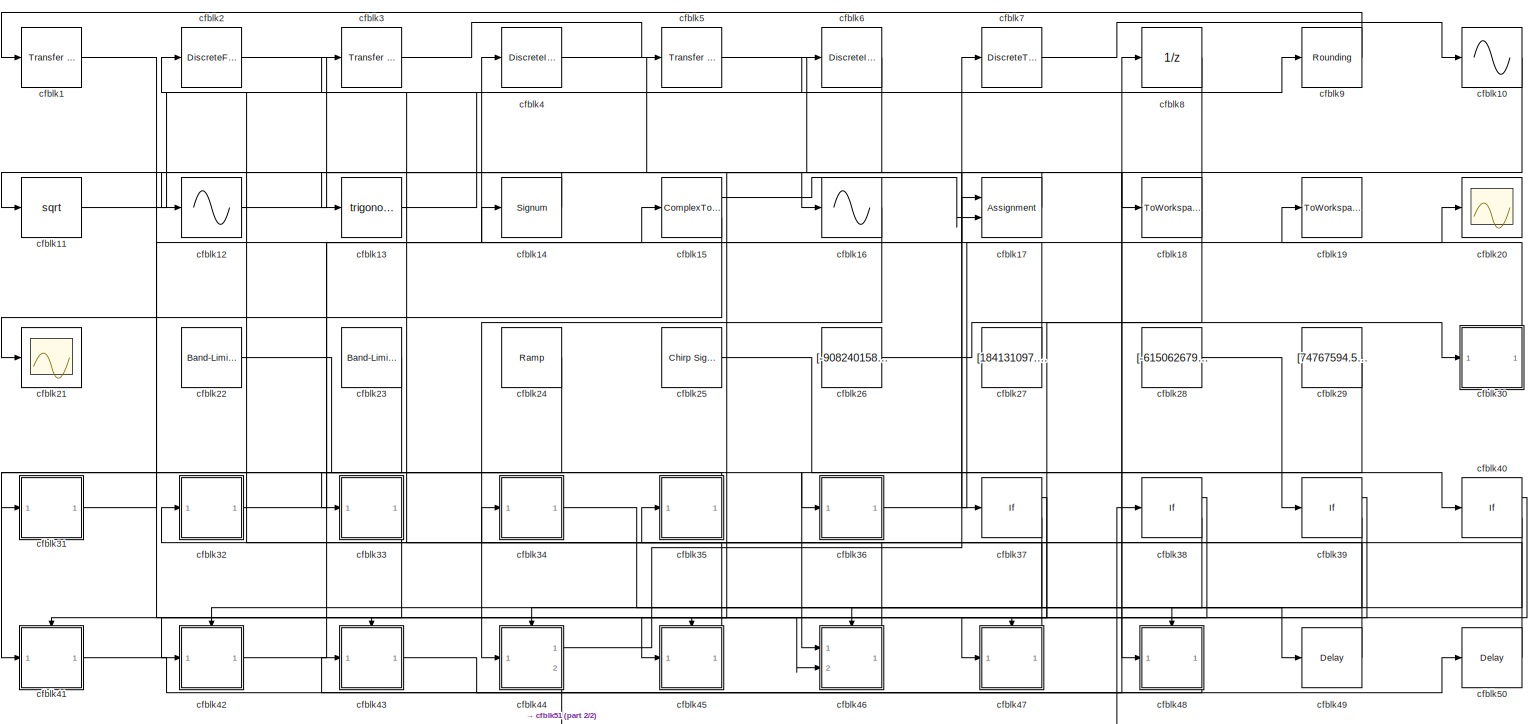
[diagram: root canvas - part 1/2, most of the canvas]
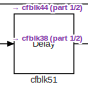
[diagram: root canvas - part 2/2, bottom left region]
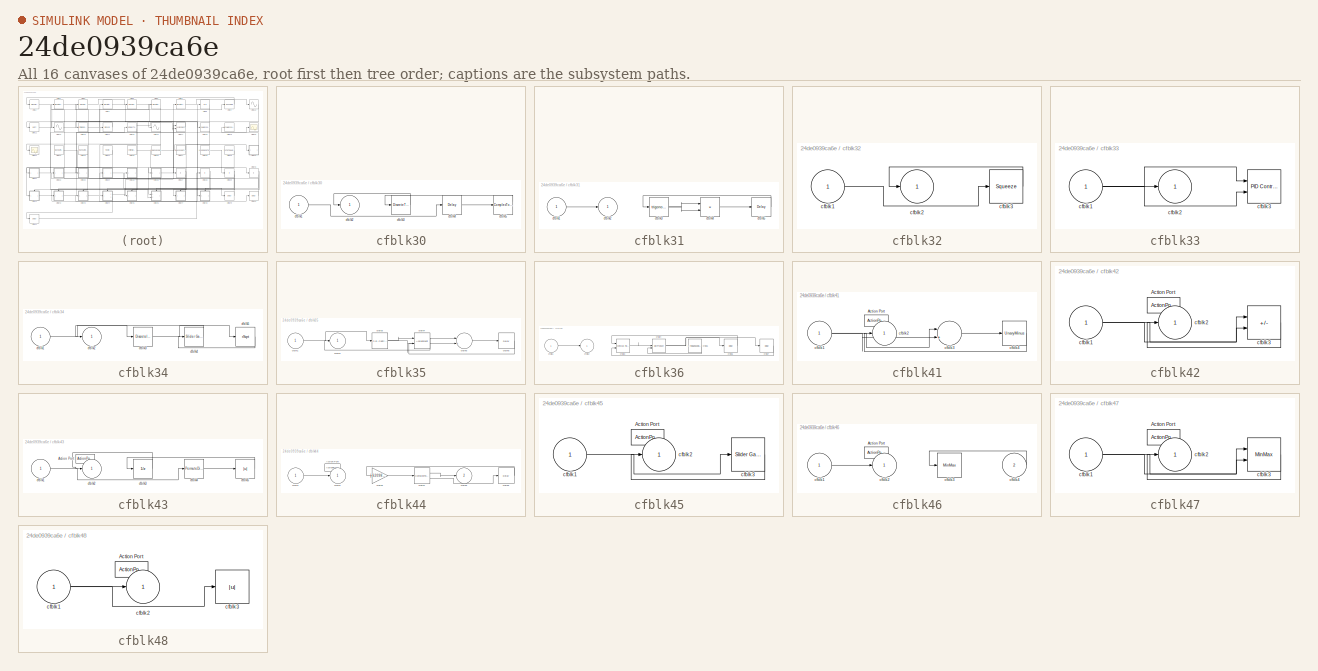
[diagram: thumbnail index - all 16 canvases of the model, root first then tree order]
MODEL slx_24de0939ca6e
KIND model
CONFIG AbsTol = auto
CONFIG EnableMultiTasking = off
CONFIG FixedStep = auto
CONFIG MaxStep = auto
CONFIG MinStep = auto
CONFIG RelTol = 1e-3
CONFIG SampleTimeConstraint = Unconstrained
CONFIG SolverName = VariableStepAuto
CONFIG StartTime = 0.0
CONFIG StopTime = 10.0
BLOCK [Reference] cfblk1  REF=simulink/Discrete/Transfer Fcn
Real Zero
  Ports = [1, 1]
  SourceBlock = simulink/Discrete/Transfer Fcn\nReal Zero
  SourceProductBaseCode = SL
  SourceType = Transfer Fcn Real Zero
BLOCK [Sin] cfblk10
  Ports = [1, 1]
  SampleTime = 0
  TimeSource = Use external signal
BLOCK [Sqrt] cfblk11
BLOCK [Sin] cfblk12
  Ports = [1, 1]
  SampleTime = 0
  TimeSource = Use external signal
BLOCK [Trigonometry] cfblk13
  Ports = [1, 1]
BLOCK [Signum] cfblk14
BLOCK [ComplexToRealImag] cfblk15
  Ports = [1, 2]
BLOCK [Sin] cfblk16
  Ports = [1, 1]
  SampleTime = 0
  TimeSource = Use external signal
BLOCK [Assignment] cfblk17
  DiagnosticForDimensions = Warning
  IndexOptions = Index vector (dialog)
  Indices = 1
  OutputSizes = 1
  Ports = [2, 1]
BLOCK [ToWorkspace] cfblk18
  FixptAsFi = on
  MaxDataPoints = inf
  Ports = [1]
  SampleTime = -1
  SaveFormat = Timeseries
  VariableName = ziowlpr
BLOCK [ToWorkspace] cfblk19
  FixptAsFi = on
  MaxDataPoints = inf
  Ports = [1]
  SampleTime = -1
  SaveFormat = Timeseries
  VariableName = actqeyi
BLOCK [DiscreteFir] cfblk2
  InputPortMap = u0
  OutputPortMap = o0
  Ports = [1, 1]
  SampleTime = 1
BLOCK [Scope] cfblk20
  Floating = off
  NumInputPorts = 1
  Ports = [1]
BLOCK [Scope] cfblk21
  Floating = off
  NumInputPorts = 1
  Ports = [1]
BLOCK [Reference] cfblk22  REF=simulink/Sources/Band-Limited
White Noise
  Ports = [0, 1]
  SourceBlock = simulink/Sources/Band-Limited\nWhite Noise
  SourceProductBaseCode = SL
  SourceType = Band-Limited White Noise.
BLOCK [Reference] cfblk23  REF=simulink/Sources/Band-Limited
White Noise
  Ports = [0, 1]
  SourceBlock = simulink/Sources/Band-Limited\nWhite Noise
  SourceProductBaseCode = SL
  SourceType = Band-Limited White Noise.
BLOCK [Reference] cfblk24  REF=simulink/Sources/Ramp
  Ports = [0, 1]
  SourceBlock = simulink/Sources/Ramp
  SourceProductBaseCode = SL
  SourceType = Ramp
BLOCK [Reference] cfblk25  REF=simulink/Sources/Chirp Signal
  Ports = [0, 1]
  SourceBlock = simulink/Sources/Chirp Signal
  SourceProductBaseCode = SL
  SourceType = chirp
BLOCK [Constant] cfblk26
  SampleTime = 1
  Value = [-908240158.921378]
BLOCK [Constant] cfblk27
  SampleTime = 1
  Value = [184131097.384394]
BLOCK [Constant] cfblk28
  SampleTime = 1
  Value = [-615062679.201228]
BLOCK [Constant] cfblk29
  SampleTime = 1
  Value = [74767594.519843]
BLOCK [Reference] cfblk3  REF=simulink/Discrete/Transfer Fcn
Real Zero
  Ports = [1, 1]
  SourceBlock = simulink/Discrete/Transfer Fcn\nReal Zero
  SourceProductBaseCode = SL
  SourceType = Transfer Fcn Real Zero
BLOCK [SubSystem] cfblk30
  Ports = [1, 1]
  RequestExecContextInheritance = off
BLOCK [Inport] cfblk30/cfblk1
BLOCK [Outport] cfblk30/cfblk2
BLOCK [DiscreteTransferFcn] cfblk30/cfblk3
  InputPortMap = u0
  Ports = [1, 1]
  SampleTime = 1
BLOCK [Delay] cfblk30/cfblk4
  InputPortMap = u0
  Ports = [1, 1]
  SampleTime = 1
BLOCK [ComplexToMagnitudeAngle] cfblk30/cfblk5
  Ports = [1, 2]
BLOCK [SubSystem] cfblk31
  Ports = [1, 1]
  RequestExecContextInheritance = off
BLOCK [Inport] cfblk31/cfblk1
BLOCK [Outport] cfblk31/cfblk2
BLOCK [Trigonometry] cfblk31/cfblk3
  Ports = [1, 1]
BLOCK [Product] cfblk31/cfblk4
  Inputs = **
  Ports = [2, 1]
BLOCK [Delay] cfblk31/cfblk5
  InputPortMap = u0
  Ports = [1, 1]
  SampleTime = 1
BLOCK [SubSystem] cfblk32
  Ports = [1, 1]
  RequestExecContextInheritance = off
BLOCK [Inport] cfblk32/cfblk1
BLOCK [Outport] cfblk32/cfblk2
BLOCK [Squeeze] cfblk32/cfblk3
BLOCK [SubSystem] cfblk33
  Ports = [1, 1]
  RequestExecContextInheritance = off
BLOCK [Inport] cfblk33/cfblk1
BLOCK [Outport] cfblk33/cfblk2
BLOCK [Reference] cfblk33/cfblk3  REF=slpidlib/PID Controller (2DOF)
  Ports = [2, 1]
  SourceBlock = slpidlib/PID Controller (2DOF)
  SourceProductBaseCode = SL
  SourceType = PID 2dof
BLOCK [SubSystem] cfblk34
  Ports = [1, 1]
  RequestExecContextInheritance = off
BLOCK [Inport] cfblk34/cfblk1
BLOCK [Outport] cfblk34/cfblk2
BLOCK [DiscreteIntegrator] cfblk34/cfblk3
  ICPrevOutput = DiscIntNeverNeededParam
  ICPrevScaledInput = DiscIntNeverNeededParam
  InitialConditionSetting = Auto
  Ports = [1, 1]
BLOCK [Reference] cfblk34/cfblk4  REF=simulink/Math
Operations/Slider
Gain
  Ports = [1, 1]
  SourceBlock = simulink/Math\nOperations/Slider\nGain
  SourceProductBaseCode = SL
  SourceType = Slider Gain
BLOCK [Sqrt] cfblk34/cfblk5
  AlgorithmType = Newton-Raphson
  Operator = rSqrt
BLOCK [SubSystem] cfblk35
  Ports = [1, 1]
  RequestExecContextInheritance = off
BLOCK [Inport] cfblk35/cfblk1
BLOCK [Outport] cfblk35/cfblk2
BLOCK [Reference] cfblk35/cfblk3  REF=slpidlib/PID Controller
  Ports = [1, 1]
  SourceBlock = slpidlib/PID Controller
  SourceProductBaseCode = SL
  SourceType = PID 1dof
BLOCK [Assignment] cfblk35/cfblk4
  DiagnosticForDimensions = Warning
  IndexOptions = Index vector (dialog)
  Indices = 1
  OutputSizes = 1
  Ports = [2, 1]
BLOCK [Sum] cfblk35/cfblk5
  Inputs = |++
  Ports = [2, 1]
BLOCK [Delay] cfblk35/cfblk6
  InputPortMap = u0
  Ports = [1, 1]
  SampleTime = 1
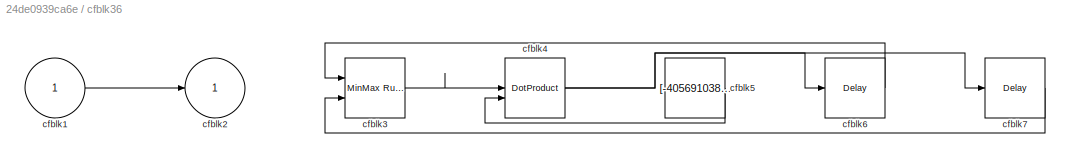
BLOCK [SubSystem] cfblk36
  Ports = [1, 1]
  RequestExecContextInheritance = off
BLOCK [Inport] cfblk36/cfblk1
BLOCK [Outport] cfblk36/cfblk2
BLOCK [Reference] cfblk36/cfblk3  REF=simulink/Math
Operations/MinMax
Running
Resettable
  Ports = [2, 1]
  SourceBlock = simulink/Math\nOperations/MinMax\nRunning\nResettable
  SourceProductBaseCode = SL
  SourceType = MinMax Running Resettable
BLOCK [DotProduct] cfblk36/cfblk4
  OutDataTypeStr = Inherit: Inherit via internal rule
BLOCK [Constant] cfblk36/cfblk5
  SampleTime = 1
  Value = [-405691038.911952]
BLOCK [Delay] cfblk36/cfblk6
  InputPortMap = u0
  Ports = [1, 1]
  SampleTime = 1
BLOCK [Delay] cfblk36/cfblk7
  InputPortMap = u0
  Ports = [1, 1]
  SampleTime = 1
BLOCK [If] cfblk37
  IfExpression = u1 >= 0
  Ports = [1, 2]
  SampleTime = 1
BLOCK [If] cfblk38
  IfExpression = u1 >= 0
  Ports = [1, 2]
  SampleTime = 1
BLOCK [If] cfblk39
  IfExpression = u1 >= 0
  Ports = [1, 2]
  SampleTime = 1
BLOCK [DiscreteIntegrator] cfblk4
  ICPrevOutput = DiscIntNeverNeededParam
  ICPrevScaledInput = DiscIntNeverNeededParam
  InitialConditionSetting = Auto
  Ports = [1, 1]
BLOCK [If] cfblk40
  IfExpression = u1 >= 0
  Ports = [1, 2]
  SampleTime = 1
BLOCK [SubSystem] cfblk41
  Ports = [1, 1, 0, 0, 0, 0, 0, 1]
  RequestExecContextInheritance = off
  TreatAsAtomicUnit = on
BLOCK [ActionPort] cfblk41/Action Port
  ActionPortLabel = if(u1 >= 0)
BLOCK [Inport] cfblk41/cfblk1
BLOCK [Outport] cfblk41/cfblk2
BLOCK [Sum] cfblk41/cfblk3
  Inputs = |++
  Ports = [2, 1]
BLOCK [UnaryMinus] cfblk41/cfblk4
BLOCK [SubSystem] cfblk42
  Ports = [1, 1, 0, 0, 0, 0, 0, 1]
  RequestExecContextInheritance = off
  TreatAsAtomicUnit = on
BLOCK [ActionPort] cfblk42/Action Port
  ActionPortLabel = else
BLOCK [Inport] cfblk42/cfblk1
BLOCK [Outport] cfblk42/cfblk2
BLOCK [Sum] cfblk42/cfblk3
  IconShape = rectangular
  Inputs = --
  Ports = [2, 1]
BLOCK [SubSystem] cfblk43
  Ports = [1, 1, 0, 0, 0, 0, 0, 1]
  RequestExecContextInheritance = off
  TreatAsAtomicUnit = on
BLOCK [ActionPort] cfblk43/Action Port
  ActionPortLabel = if(u1 >= 0)
BLOCK [Inport] cfblk43/cfblk1
BLOCK [Outport] cfblk43/cfblk2
BLOCK [UnitDelay] cfblk43/cfblk3
  HasFrameUpgradeWarning = on
  SampleTime = -1
BLOCK [PermuteDimensions] cfblk43/cfblk4
BLOCK [Abs] cfblk43/cfblk5
  SaturateOnIntegerOverflow = off
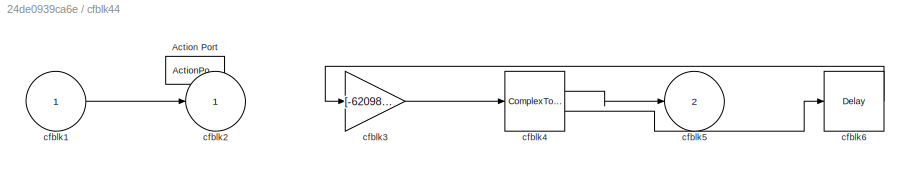
BLOCK [SubSystem] cfblk44
  Ports = [1, 2, 0, 0, 0, 0, 0, 1]
  RequestExecContextInheritance = off
  TreatAsAtomicUnit = on
BLOCK [ActionPort] cfblk44/Action Port
  ActionPortLabel = else
BLOCK [Inport] cfblk44/cfblk1
BLOCK [Outport] cfblk44/cfblk2
BLOCK [Gain] cfblk44/cfblk3
  Gain = [-620985247.199266]
BLOCK [ComplexToRealImag] cfblk44/cfblk4
  Ports = [1, 2]
BLOCK [Outport] cfblk44/cfblk5
  Port = 2
BLOCK [Delay] cfblk44/cfblk6
  InputPortMap = u0
  Ports = [1, 1]
BLOCK [SubSystem] cfblk45
  Ports = [1, 1, 0, 0, 0, 0, 0, 1]
  RequestExecContextInheritance = off
  TreatAsAtomicUnit = on
BLOCK [ActionPort] cfblk45/Action Port
  ActionPortLabel = if(u1 >= 0)
BLOCK [Inport] cfblk45/cfblk1
BLOCK [Outport] cfblk45/cfblk2
BLOCK [Reference] cfblk45/cfblk3  REF=simulink/Math
Operations/Slider
Gain
  Ports = [1, 1]
  SourceBlock = simulink/Math\nOperations/Slider\nGain
  SourceProductBaseCode = SL
  SourceType = Slider Gain
BLOCK [SubSystem] cfblk46
  Ports = [2, 1, 0, 0, 0, 0, 0, 1]
  RequestExecContextInheritance = off
  TreatAsAtomicUnit = on
BLOCK [ActionPort] cfblk46/Action Port
  ActionPortLabel = else
BLOCK [Inport] cfblk46/cfblk1
BLOCK [Outport] cfblk46/cfblk2
BLOCK [MinMax] cfblk46/cfblk3
  Function = max
  Ports = [1, 1]
BLOCK [Inport] cfblk46/cfblk4
  Port = 2
BLOCK [SubSystem] cfblk47
  Ports = [1, 1, 0, 0, 0, 0, 0, 1]
  RequestExecContextInheritance = off
  TreatAsAtomicUnit = on
BLOCK [ActionPort] cfblk47/Action Port
  ActionPortLabel = if(u1 >= 0)
BLOCK [Inport] cfblk47/cfblk1
BLOCK [Outport] cfblk47/cfblk2
BLOCK [MinMax] cfblk47/cfblk3
  Function = max
  Inputs = 2
  Ports = [2, 1]
BLOCK [SubSystem] cfblk48
  Ports = [1, 1, 0, 0, 0, 0, 0, 1]
  RequestExecContextInheritance = off
  TreatAsAtomicUnit = on
BLOCK [ActionPort] cfblk48/Action Port
  ActionPortLabel = else
BLOCK [Inport] cfblk48/cfblk1
BLOCK [Outport] cfblk48/cfblk2
BLOCK [Abs] cfblk48/cfblk3
  SaturateOnIntegerOverflow = off
BLOCK [Delay] cfblk49
  InputPortMap = u0
  Ports = [1, 1]
  SampleTime = 1
BLOCK [Reference] cfblk5  REF=simulink/Discrete/Transfer Fcn
First Order
  Ports = [1, 1]
  SourceBlock = simulink/Discrete/Transfer Fcn\nFirst Order
  SourceProductBaseCode = SL
  SourceType = First Order Transfer Fcn
BLOCK [Delay] cfblk50
  InputPortMap = u0
  Ports = [1, 1]
  SampleTime = 1
BLOCK [Delay] cfblk51
  InputPortMap = u0
  Ports = [1, 1]
  SampleTime = 1
BLOCK [DiscreteIntegrator] cfblk6
  ICPrevOutput = DiscIntNeverNeededParam
  ICPrevScaledInput = DiscIntNeverNeededParam
  InitialConditionSetting = Auto
  Ports = [1, 1]
BLOCK [DiscreteTransferFcn] cfblk7
  InputPortMap = u0
  Ports = [1, 1]
  SampleTime = 1
BLOCK [UnitDelay] cfblk8
  HasFrameUpgradeWarning = on
BLOCK [Rounding] cfblk9
LINE cfblk10:1 -> cfblk13:1
LINE cfblk11:1 -> cfblk9:1
LINE cfblk12:1 -> cfblk18:1
LINE cfblk13:1 -> cfblk6:1
LINE cfblk14:1 -> cfblk11:1
LINE cfblk15:1 -> cfblk17:2
LINE cfblk15:2 -> cfblk21:1
LINE cfblk16:1 -> cfblk44:1
LINE cfblk17:1 -> cfblk12:1
LINE cfblk1:1 -> cfblk46:2
LINE cfblk22:1 -> cfblk46:1
LINE cfblk23:1 -> cfblk33:1
LINE cfblk24:1 -> cfblk41:1
LINE cfblk25:1 -> cfblk40:1
LINE cfblk26:1 -> cfblk30:1
LINE cfblk27:1 -> cfblk4:1
LINE cfblk28:1 -> cfblk39:1
LINE cfblk29:1 -> cfblk36:1
LINE cfblk2:1 -> cfblk37:1
LINE cfblk30/cfblk1:1 -> cfblk30/cfblk4:1
LINE cfblk30/cfblk3:1 -> cfblk30/cfblk2:1
LINE cfblk30/cfblk4:1 -> cfblk30/cfblk5:1
LINE cfblk30/cfblk5:1 -> cfblk30/cfblk3:1
LINE cfblk30:1 -> cfblk19:1
LINE cfblk31/cfblk1:1 -> cfblk31/cfblk2:1
NET cfblk31/cfblk3:1 -> cfblk31/cfblk4:1, cfblk31/cfblk4:2
LINE cfblk31/cfblk4:1 -> cfblk31/cfblk5:1
LINE cfblk31/cfblk5:1 -> cfblk31/cfblk3:1
LINE cfblk31:1 -> cfblk17:1
LINE cfblk32/cfblk1:1 -> cfblk32/cfblk3:1
LINE cfblk32/cfblk3:1 -> cfblk32/cfblk2:1
LINE cfblk32:1 -> cfblk15:1
NET cfblk33/cfblk1:1 -> cfblk33/cfblk2:1, cfblk33/cfblk3:1, cfblk33/cfblk3:2
LINE cfblk33:1 -> cfblk42:1
LINE cfblk34/cfblk1:1 -> cfblk34/cfblk3:1
LINE cfblk34/cfblk3:1 -> cfblk34/cfblk5:1
LINE cfblk34/cfblk4:1 -> cfblk34/cfblk2:1
LINE cfblk34/cfblk5:1 -> cfblk34/cfblk4:1
LINE cfblk34:1 -> cfblk49:1
LINE cfblk35/cfblk1:1 -> cfblk35/cfblk3:1
NET cfblk35/cfblk3:1 -> cfblk35/cfblk4:1, cfblk35/cfblk5:2
NET cfblk35/cfblk4:1 -> cfblk35/cfblk2:1, cfblk35/cfblk5:1
LINE cfblk35/cfblk5:1 -> cfblk35/cfblk6:1
LINE cfblk35/cfblk6:1 -> cfblk35/cfblk4:2
LINE cfblk35:1 -> cfblk31:1
LINE cfblk36/cfblk1:1 -> cfblk36/cfblk2:1
LINE cfblk36/cfblk3:1 -> cfblk36/cfblk4:1
NET cfblk36/cfblk4:1 -> cfblk36/cfblk6:1, cfblk36/cfblk7:1
LINE cfblk36/cfblk5:1 -> cfblk36/cfblk4:2
LINE cfblk36/cfblk6:1 -> cfblk36/cfblk3:1
LINE cfblk36/cfblk7:1 -> cfblk36/cfblk3:2
LINE cfblk36:1 -> cfblk20:1
LINE cfblk37:1 -> cfblk41:ifaction
LINE cfblk37:2 -> cfblk42:ifaction
LINE cfblk38:1 -> cfblk43:ifaction
LINE cfblk38:2 -> cfblk44:ifaction
LINE cfblk39:1 -> cfblk45:ifaction
LINE cfblk39:2 -> cfblk46:ifaction
LINE cfblk3:1 -> cfblk5:1
LINE cfblk40:1 -> cfblk47:ifaction
LINE cfblk40:2 -> cfblk48:ifaction
NET cfblk41/cfblk1:1 -> cfblk41/cfblk3:1, cfblk41/cfblk3:2
LINE cfblk41/cfblk3:1 -> cfblk41/cfblk4:1
LINE cfblk41/cfblk4:1 -> cfblk41/cfblk2:1
LINE cfblk41:1 -> cfblk8:1
NET cfblk42/cfblk1:1 -> cfblk42/cfblk3:1, cfblk42/cfblk3:2
LINE cfblk42/cfblk3:1 -> cfblk42/cfblk2:1
LINE cfblk42:1 -> cfblk14:1
LINE cfblk43/cfblk1:1 -> cfblk43/cfblk4:1
LINE cfblk43/cfblk3:1 -> cfblk43/cfblk2:1
LINE cfblk43/cfblk4:1 -> cfblk43/cfblk5:1
LINE cfblk43/cfblk5:1 -> cfblk43/cfblk3:1
LINE cfblk43:1 -> cfblk50:1
LINE cfblk44/cfblk1:1 -> cfblk44/cfblk2:1
LINE cfblk44/cfblk3:1 -> cfblk44/cfblk4:1
LINE cfblk44/cfblk4:1 -> cfblk44/cfblk5:1
LINE cfblk44/cfblk4:2 -> cfblk44/cfblk6:1
LINE cfblk44/cfblk6:1 -> cfblk44/cfblk3:1
LINE cfblk44:1 -> cfblk7:1
LINE cfblk44:2 -> cfblk51:1
LINE cfblk45/cfblk1:1 -> cfblk45/cfblk3:1
LINE cfblk45/cfblk3:1 -> cfblk45/cfblk2:1
LINE cfblk45:1 -> cfblk35:1
LINE cfblk46/cfblk1:1 -> cfblk46/cfblk2:1
LINE cfblk46/cfblk4:1 -> cfblk46/cfblk3:1
LINE cfblk46:1 -> cfblk32:1
NET cfblk47/cfblk1:1 -> cfblk47/cfblk3:1, cfblk47/cfblk3:2
LINE cfblk47/cfblk3:1 -> cfblk47/cfblk2:1
LINE cfblk47:1 -> cfblk34:1
NET cfblk48/cfblk1:1 -> cfblk48/cfblk2:1, cfblk48/cfblk3:1
LINE cfblk48:1 -> cfblk43:1
LINE cfblk49:1 -> cfblk2:1
LINE cfblk4:1 -> cfblk16:1
LINE cfblk50:1 -> cfblk3:1
LINE cfblk51:1 -> cfblk38:1
LINE cfblk5:1 -> cfblk48:1
LINE cfblk6:1 -> cfblk45:1
LINE cfblk7:1 -> cfblk10:1
LINE cfblk8:1 -> cfblk47:1
LINE cfblk9:1 -> cfblk1:1
note: NET lines group one-source signal fan-out (src -> all destinations, sorted); 1:1 wires keep LINE
